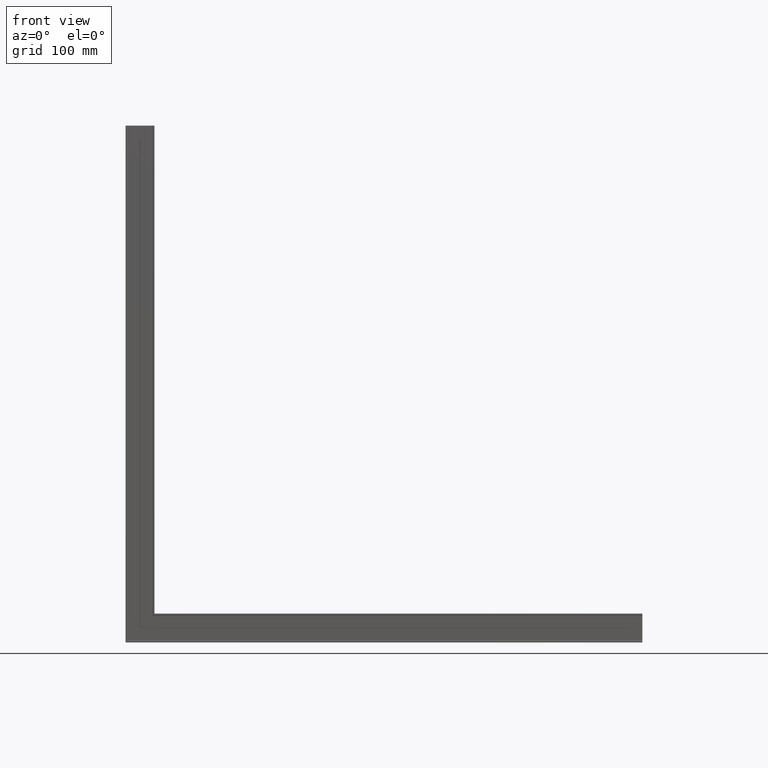
[diagram: clean part render]
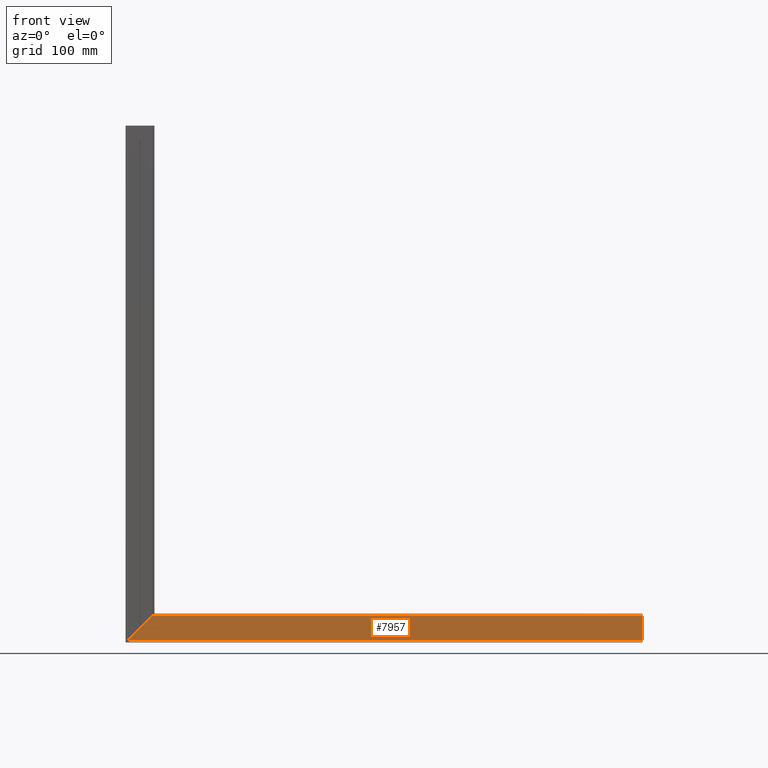
[diagram: same view with one face highlighted and labeled with its STEP entity id]
A machine part, front view. The second image highlights one B-rep face of the part: STEP entity #7957.
In plain terms, the highlighted planar face has unit normal (0, 1, 0).
Its self-contained STEP definition (entity closure, byte-faithful):
#578 = CARTESIAN_POINT ( 'NONE',  ( -15.50000000000001421, 11.00000000000000000, -498.0000000000000000 ) ) ;
#911 = CARTESIAN_POINT ( 'NONE',  ( 486.0000000000000000, 11.00000000000000000, -498.0000000000000000 ) ) ;
#1573 = ORIENTED_EDGE ( 'NONE', *, *, #15024, .F. ) ;
#2136 = EDGE_CURVE ( 'NONE', #7901, #6526, #3890, .T. ) ;
#2612 = CARTESIAN_POINT ( 'NONE',  ( -15.50000000000001421, 11.00000000000000000, -474.0000000000000000 ) ) ;
#2615 = ORIENTED_EDGE ( 'NONE', *, *, #2136, .T. ) ;
#2876 = EDGE_CURVE ( 'NONE', #15074, #7901, #13920, .T. ) ;
#3320 = DIRECTION ( 'NONE',  ( 0.000000000000000000, 1.000000000000000000, 0.000000000000000000 ) ) ;
#3890 = LINE ( 'NONE', #14064, #7748 ) ;
#6526 = VERTEX_POINT ( 'NONE', #9787 ) ;
#6890 = EDGE_CURVE ( 'NONE', #6526, #15198, #16300, .T. ) ;
#7252 = CARTESIAN_POINT ( 'NONE',  ( 236.9999999999999716, 11.00000000000000000, -248.9999999999999716 ) ) ;
#7748 = VECTOR ( 'NONE', #16519, 1000.000000000000000 ) ;
#7901 = VERTEX_POINT ( 'NONE', #14173 ) ;
#7954 = VECTOR ( 'NONE', #9990, 1000.000000000000114 ) ;
#7957 = ADVANCED_FACE ( 'NONE', ( #13942 ), #11526, .F. ) ;
#9787 = CARTESIAN_POINT ( 'NONE',  ( 486.0000000000000000, 11.00000000000000000, -498.0000000000000000 ) ) ;
#9894 = LINE ( 'NONE', #2612, #16068 ) ;
#9990 = DIRECTION ( 'NONE',  ( -0.7071067811865474617, 0.000000000000000000, -0.7071067811865474617 ) ) ;
#11399 = CARTESIAN_POINT ( 'NONE',  ( 486.0000000000000000, 11.00000000000000000, -474.0000000000000000 ) ) ;
#11526 = PLANE ( 'NONE',  #13755 ) ;
#12859 = DIRECTION ( 'NONE',  ( 0.000000000000000000, -0.000000000000000000, 1.000000000000000000 ) ) ;
#13094 = VECTOR ( 'NONE', #14514, 1000.000000000000000 ) ;
#13755 = AXIS2_PLACEMENT_3D ( 'NONE', #578, #3320, #12859 ) ;
#13881 = CARTESIAN_POINT ( 'NONE',  ( 12.00000000000000000, 11.00000000000000000, -473.9999999999999432 ) ) ;
#13920 = LINE ( 'NONE', #7252, #7954 ) ;
#13942 = FACE_OUTER_BOUND ( 'NONE', #16785, .T. ) ;
#14064 = CARTESIAN_POINT ( 'NONE',  ( -15.50000000000001421, 11.00000000000000000, -498.0000000000000000 ) ) ;
#14173 = CARTESIAN_POINT ( 'NONE',  ( -12.00000000000002132, 11.00000000000000000, -497.9999999999999432 ) ) ;
#14439 = ORIENTED_EDGE ( 'NONE', *, *, #6890, .T. ) ;
#14514 = DIRECTION ( 'NONE',  ( 6.123233995736766036E-17, 0.000000000000000000, 1.000000000000000000 ) ) ;
#14759 = ORIENTED_EDGE ( 'NONE', *, *, #2876, .T. ) ;
#15024 = EDGE_CURVE ( 'NONE', #15074, #15198, #9894, .T. ) ;
#15074 = VERTEX_POINT ( 'NONE', #13881 ) ;
#15194 = DIRECTION ( 'NONE',  ( 1.000000000000000000, 0.000000000000000000, 0.000000000000000000 ) ) ;
#15198 = VERTEX_POINT ( 'NONE', #11399 ) ;
#16068 = VECTOR ( 'NONE', #15194, 1000.000000000000000 ) ;
#16300 = LINE ( 'NONE', #911, #13094 ) ;
#16519 = DIRECTION ( 'NONE',  ( 1.000000000000000000, 0.000000000000000000, 0.000000000000000000 ) ) ;
#16785 = EDGE_LOOP ( 'NONE', ( #14759, #2615, #14439, #1573 ) ) ;